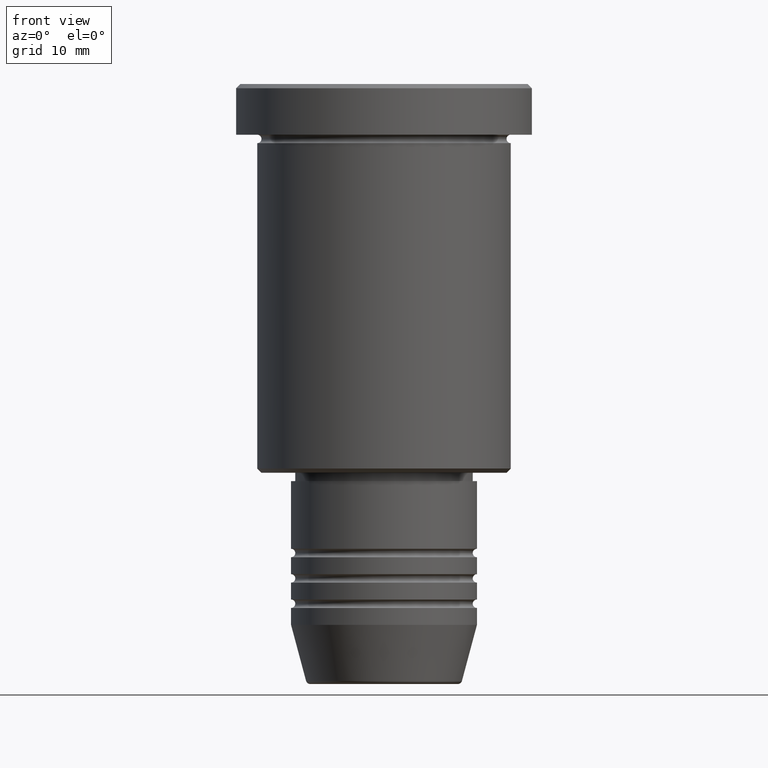
[diagram: clean part render]
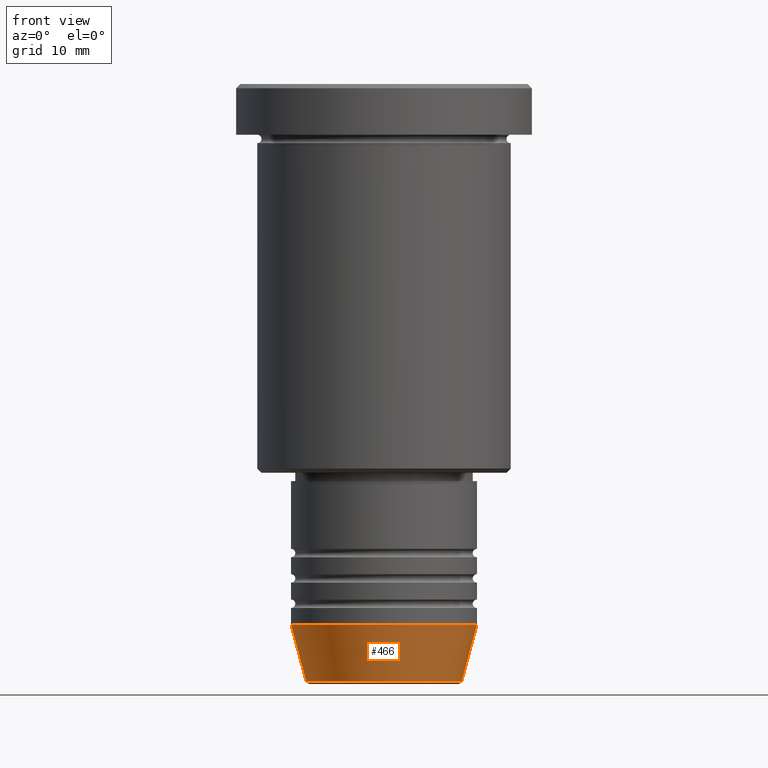
[diagram: same view with one face highlighted and labeled with its STEP entity id]
A machine part, front view. The second image highlights one B-rep face of the part: STEP entity #466.
In plain terms, the highlighted conical surface has half-angle 15 deg.
Its self-contained STEP definition (entity closure, byte-faithful):
#54 = DIRECTION ( 'NONE',  ( -0.2588190451025213501, 3.169619151431772337E-17, 0.9659258262890680902 ) ) ;
#77 = EDGE_CURVE ( 'NONE', #1024, #567, #102, .T. ) ;
#102 = CIRCLE ( 'NONE', #791, 9.223655072137187716 ) ;
#176 = DIRECTION ( 'NONE',  ( 1.000000000000000000, 0.000000000000000000, 0.000000000000000000 ) ) ;
#186 = DIRECTION ( 'NONE',  ( -0.000000000000000000, -0.000000000000000000, 1.000000000000000000 ) ) ;
#207 = CARTESIAN_POINT ( 'NONE',  ( 9.223655072137187716, 0.000000000000000000, -70.62940952255125637 ) ) ;
#261 = LINE ( 'NONE', #451, #948 ) ;
#322 = EDGE_LOOP ( 'NONE', ( #1045, #1156, #874, #591 ) ) ;
#367 = CARTESIAN_POINT ( 'NONE',  ( 0.000000000000000000, 0.000000000000000000, -64.00000000000000000 ) ) ;
#428 = CARTESIAN_POINT ( 'NONE',  ( -9.223655072137187716, 1.238341722557647004E-15, -70.62940952255125637 ) ) ;
#446 = AXIS2_PLACEMENT_3D ( 'NONE', #367, #802, #176 ) ;
#451 = CARTESIAN_POINT ( 'NONE',  ( 11.00000000000000000, 0.000000000000000000, -64.00000000000000000 ) ) ;
#462 = CIRCLE ( 'NONE', #1093, 11.00000000000000000 ) ;
#466 = ADVANCED_FACE ( 'NONE', ( #980 ), #871, .T. ) ;
#517 = DIRECTION ( 'NONE',  ( -0.000000000000000000, -0.000000000000000000, 1.000000000000000000 ) ) ;
#538 = EDGE_CURVE ( 'NONE', #567, #556, #261, .T. ) ;
#554 = EDGE_CURVE ( 'NONE', #786, #556, #462, .T. ) ;
#556 = VERTEX_POINT ( 'NONE', #1106 ) ;
#567 = VERTEX_POINT ( 'NONE', #207 ) ;
#591 = ORIENTED_EDGE ( 'NONE', *, *, #554, .F. ) ;
#619 = CARTESIAN_POINT ( 'NONE',  ( 0.000000000000000000, 0.000000000000000000, -64.00000000000000000 ) ) ;
#698 = CARTESIAN_POINT ( 'NONE',  ( -11.00000000000000000, 1.347111479062088405E-15, -64.00000000000000000 ) ) ;
#713 = CARTESIAN_POINT ( 'NONE',  ( 0.000000000000000000, 0.000000000000000000, -70.62940952255125637 ) ) ;
#714 = EDGE_CURVE ( 'NONE', #1024, #786, #1127, .T. ) ;
#743 = DIRECTION ( 'NONE',  ( 1.000000000000000000, 0.000000000000000000, 0.000000000000000000 ) ) ;
#761 = CARTESIAN_POINT ( 'NONE',  ( -11.00000000000000000, 1.347111479062088405E-15, -64.00000000000000000 ) ) ;
#786 = VERTEX_POINT ( 'NONE', #761 ) ;
#789 = DIRECTION ( 'NONE',  ( 1.000000000000000000, 0.000000000000000000, 0.000000000000000000 ) ) ;
#791 = AXIS2_PLACEMENT_3D ( 'NONE', #713, #517, #789 ) ;
#802 = DIRECTION ( 'NONE',  ( -0.000000000000000000, -0.000000000000000000, 1.000000000000000000 ) ) ;
#816 = DIRECTION ( 'NONE',  ( 0.2588190451025213501, 0.000000000000000000, 0.9659258262890680902 ) ) ;
#871 = CONICAL_SURFACE ( 'NONE', #446, 11.00000000000000000, 0.2617993877991500740 ) ;
#874 = ORIENTED_EDGE ( 'NONE', *, *, #538, .T. ) ;
#948 = VECTOR ( 'NONE', #816, 1000.000000000000000 ) ;
#980 = FACE_OUTER_BOUND ( 'NONE', #322, .T. ) ;
#1013 = VECTOR ( 'NONE', #54, 1000.000000000000000 ) ;
#1024 = VERTEX_POINT ( 'NONE', #428 ) ;
#1045 = ORIENTED_EDGE ( 'NONE', *, *, #714, .F. ) ;
#1093 = AXIS2_PLACEMENT_3D ( 'NONE', #619, #186, #743 ) ;
#1106 = CARTESIAN_POINT ( 'NONE',  ( 11.00000000000000000, 0.000000000000000000, -64.00000000000000000 ) ) ;
#1127 = LINE ( 'NONE', #698, #1013 ) ;
#1156 = ORIENTED_EDGE ( 'NONE', *, *, #77, .T. ) ;